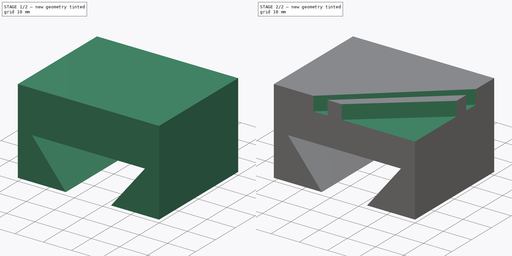
[diagram: build sequence overview — one tinted view per stage of 2, left to right]
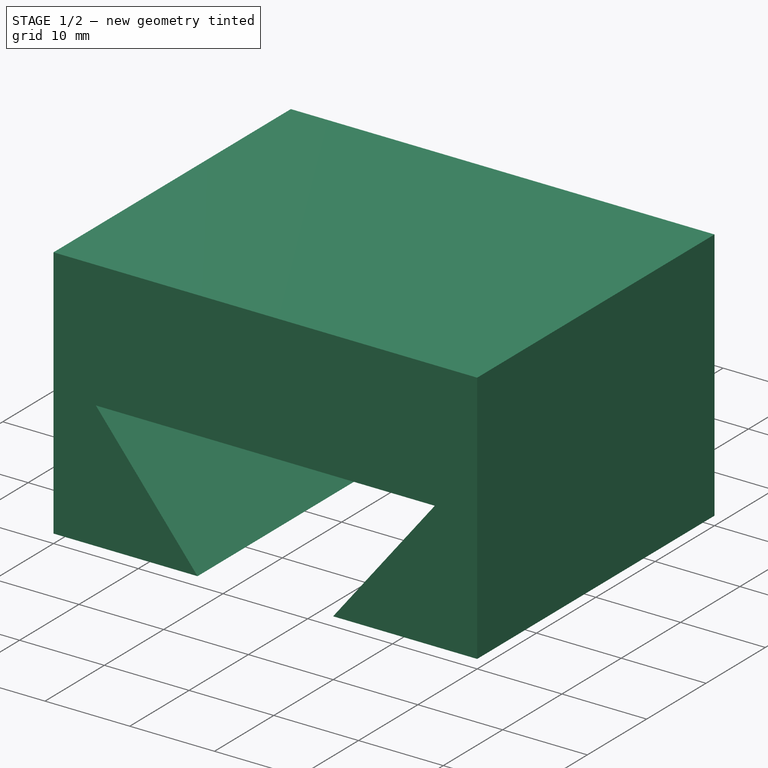
[diagram: stage 1 of 2 — iso view after this stage's code; geometry added in this stage tinted green]
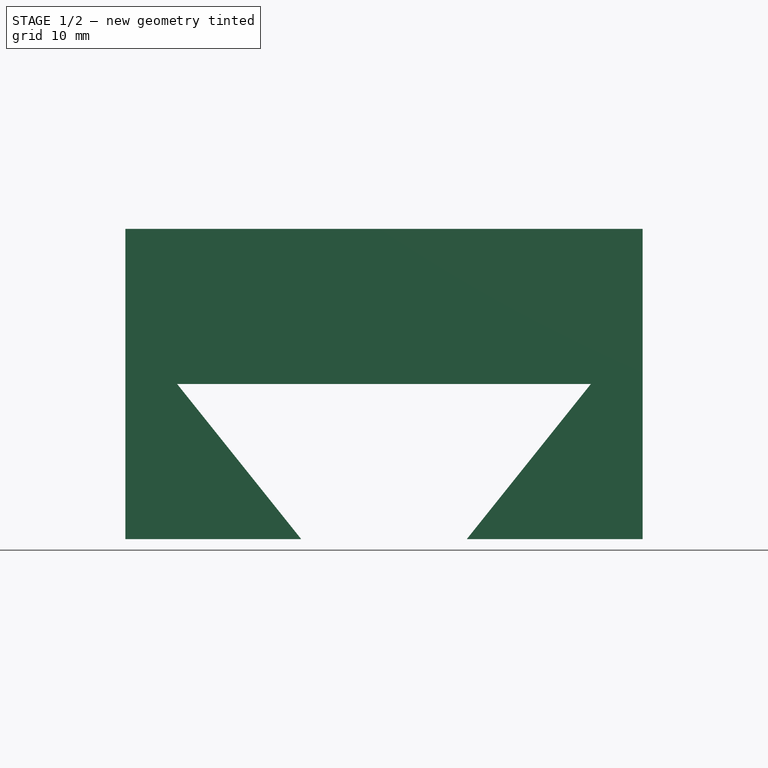
[diagram: stage 1 of 2 — front view after this stage's code; geometry added in this stage tinted green]
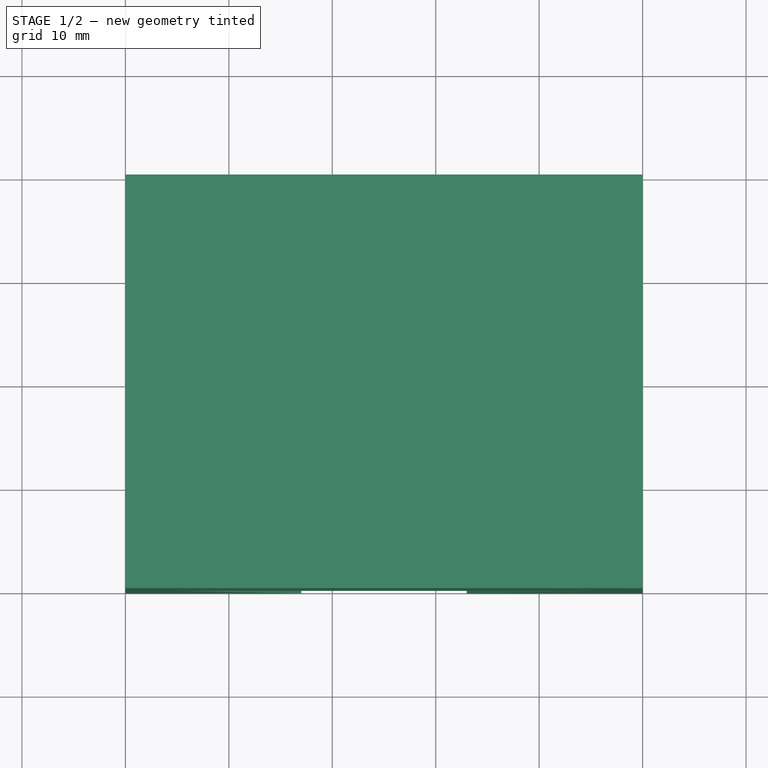
[diagram: stage 1 of 2 — top view after this stage's code; geometry added in this stage tinted green]
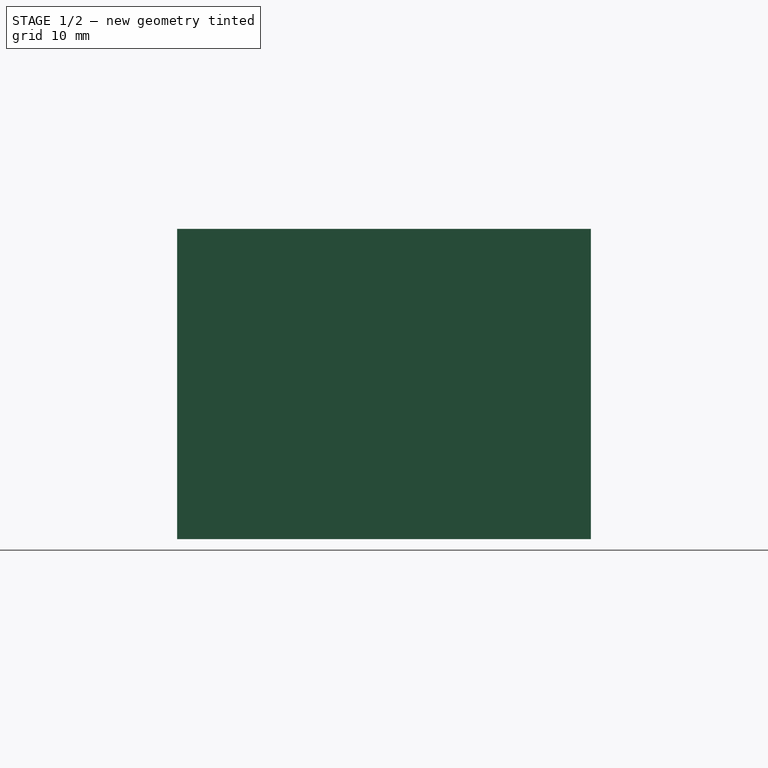
[diagram: stage 1 of 2 — right view after this stage's code; geometry added in this stage tinted green]
FCSTD DOCUMENT  (FreeCAD 0.14R3702 (Git))
Label: bloque1
License: CC-BY 3.0
LicenseURL: http://creativecommons.org/licenses/by/3.0/
objects: Sketcher::SketchObject×4, PartDesign::Pocket×3, Part::Box×1
note: 11 computed .brp shape members not serialized (recipe doc carries the construction recipe); baked Part::Feature solids carry a one-line shape summary decoded from their .brp

FEATURE [Part::Box] Box  label="Cubo"
  Height = 30
  Length = 50
  Width = 40
FEATURE [Sketcher::SketchObject] Sketch
  ExternalGeometry = -> [Box]
  Placement = pos=(0,0,0) rot=(1,0,0;1.5708rad)
  Support = -> Box [Face3]
  sketch-geometry (6):
    g0: LineSegment [constr] StartX=25 StartY=51.1878 StartZ=0 EndX=25 EndY=-10.4928 EndZ=0
    g1: LineSegment [constr] StartX=-15.7733 StartY=15 StartZ=0 EndX=60.4943 EndY=15 EndZ=0
    g2: LineSegment StartX=17 StartY=0 StartZ=0 EndX=5 EndY=15 EndZ=0
    g3: LineSegment StartX=5 StartY=15 StartZ=0 EndX=45 EndY=15 EndZ=0
    g4: LineSegment StartX=45 StartY=15 StartZ=0 EndX=33 EndY=0 EndZ=0
    g5: LineSegment StartX=33 StartY=0 StartZ=0 EndX=17 EndY=0 EndZ=0
  constraints (15):
    c: Symmetric(g-4,g-3,g0)
    c: Horizontal(g1)
    c: Symmetric(g-4,g-4,g1)
    c: PointOnObject(g2,g1)
    c: Coincident(g2,g3)
    c: Horizontal(g3)
    c: Coincident(g3,g4)
    c: Coincident(g4,g5)
    c: Horizontal(g5)
    c: Coincident(g2,g5)
    c: Symmetric(g2,g3,g0)
    c: Symmetric(g4,g2,g0)
    c: PointOnObject(g2,g-1)
    c: DistanceX(g5) = -16
    c: DistanceX(g3,g2) = -40
FEATURE [PartDesign::Pocket] Pocket
  Length = 5
  Sketch = -> Sketch
  Type = 1
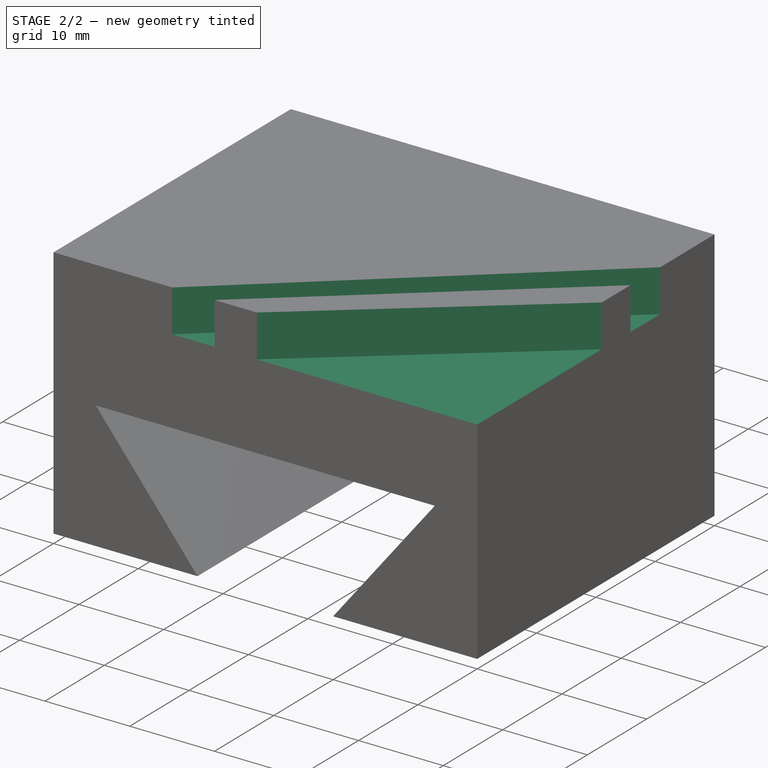
[diagram: stage 2 of 2 — iso view after this stage's code; geometry added in this stage tinted green]
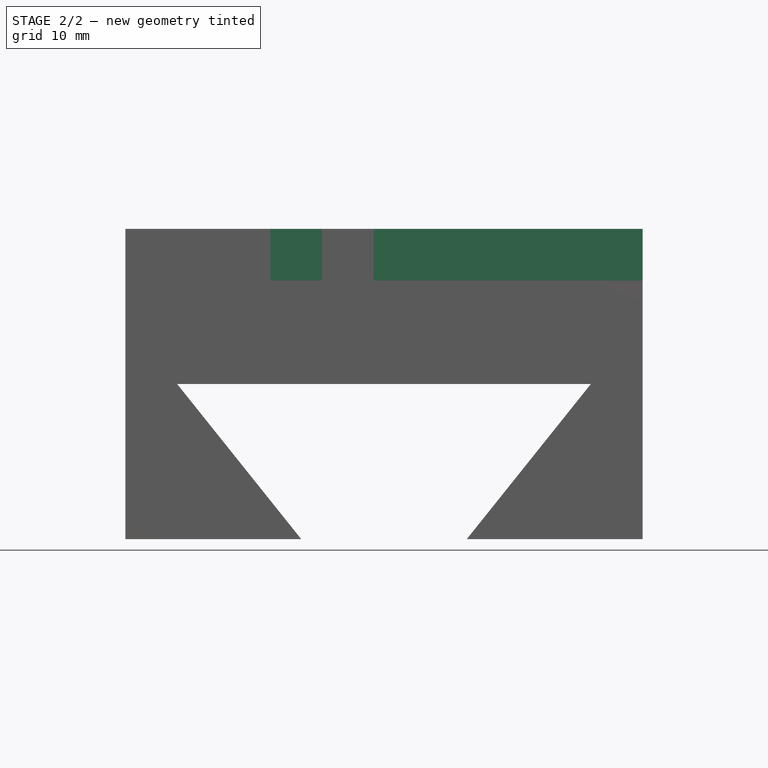
[diagram: stage 2 of 2 — front view after this stage's code; geometry added in this stage tinted green]
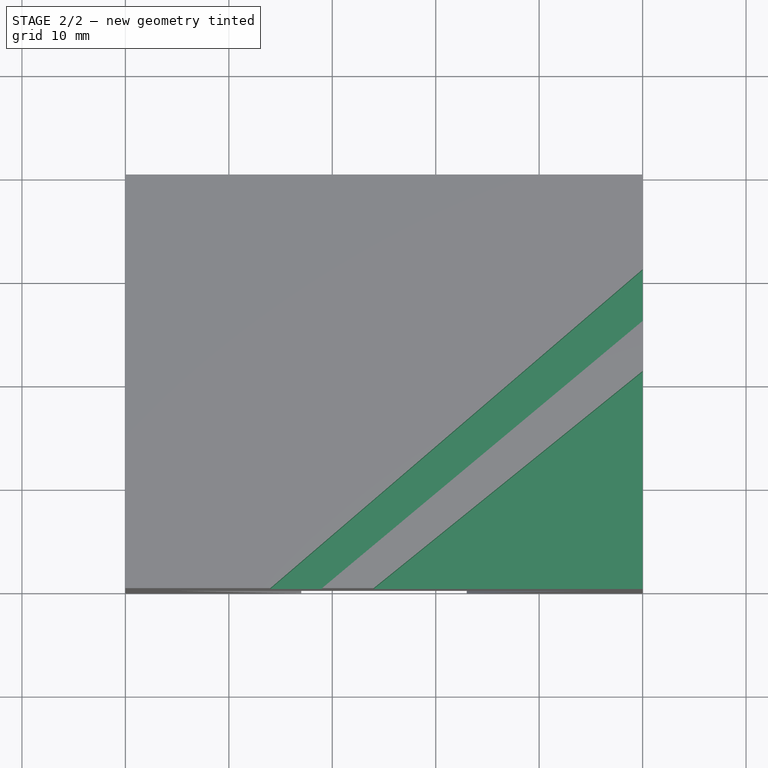
[diagram: stage 2 of 2 — top view after this stage's code; geometry added in this stage tinted green]
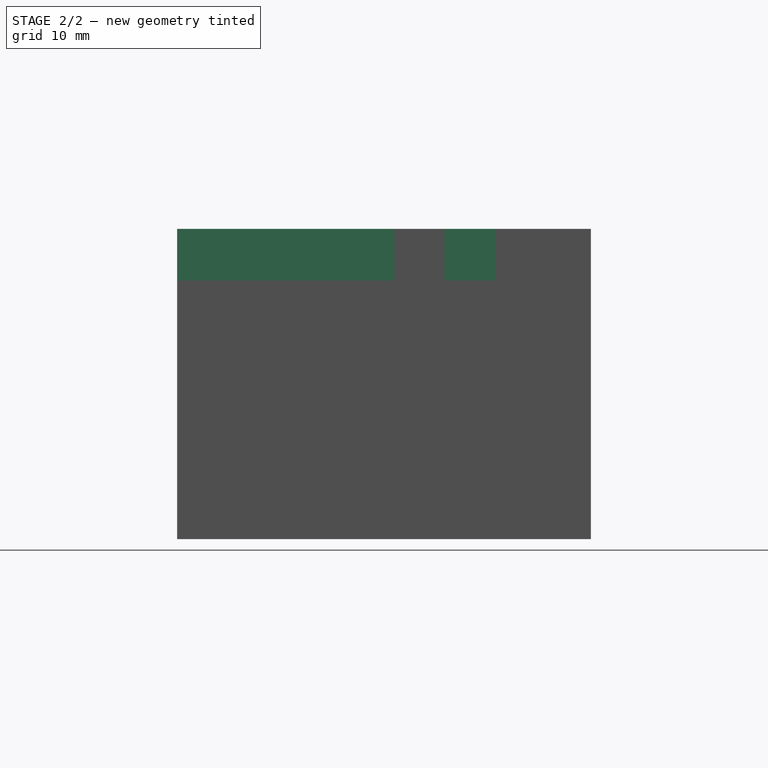
[diagram: stage 2 of 2 — right view after this stage's code; geometry added in this stage tinted green]
FEATURE [Sketcher::SketchObject] Sketch001
  ExternalGeometry = -> [Pocket]
  Placement = pos=(0,0,30) rot=(0,0,1;0rad)
  Support = -> Pocket [Face3]
  sketch-geometry (3):
    g0: LineSegment StartX=50 StartY=0 StartZ=0 EndX=24 EndY=0 EndZ=0
    g1: LineSegment StartX=24 StartY=0 StartZ=0 EndX=50 EndY=21 EndZ=0
    g2: LineSegment StartX=50 StartY=21 StartZ=0 EndX=50 EndY=0 EndZ=0
  constraints (9):
    c: PointOnObject(g0,g-1)
    c: Horizontal(g0)
    c: Coincident(g0,g1)
    c: PointOnObject(g1,g-3)
    c: Coincident(g1,g2)
    c: Vertical(g2)
    c: DistanceX(g0) = -26
    c: DistanceY(g2) = -21
    c: Coincident(g0,g2)
FEATURE [PartDesign::Pocket] Pocket001
  Length = 5
  Sketch = -> Sketch001
  Type = 0
FEATURE [Sketcher::SketchObject] Sketch002
  Placement = pos=(0,0,0) rot=(1,0,0;1.5708rad)
  Support = -> Pocket001 [Face2]
FEATURE [Sketcher::SketchObject] Sketch003
  ExternalGeometry = -> [Pocket001]
  Placement = pos=(0,0,30) rot=(0,0,1;0rad)
  Support = -> Pocket001 [Face3]
  sketch-geometry (4):
    g0: LineSegment StartX=19 StartY=-0.009107 StartZ=0 EndX=14 EndY=-0.009107 EndZ=0
    g1: LineSegment StartX=14 StartY=-0.009107 StartZ=0 EndX=50.1945 EndY=31 EndZ=0
    g2: LineSegment StartX=50.1945 StartY=31 StartZ=0 EndX=50.1945 EndY=26 EndZ=0
    g3: LineSegment StartX=50.1945 StartY=26 StartZ=0 EndX=19 EndY=-0.009107 EndZ=0
  constraints (10):
    c: Coincident(g0,g1)
    c: Coincident(g1,g2)
    c: Vertical(g2)
    c: Coincident(g2,g3)
    c: Coincident(g3,g0)
    c: Horizontal(g0)
    c: DistanceY(g-3,g2) = 5
    c: DistanceY(g2,g1) = 5
    c: DistanceX(g-4,g0) = -5
    c: DistanceX(g0,g0) = 5
FEATURE [PartDesign::Pocket] Pocket002
  Length = 5
  Sketch = -> Sketch003
  Type = 0
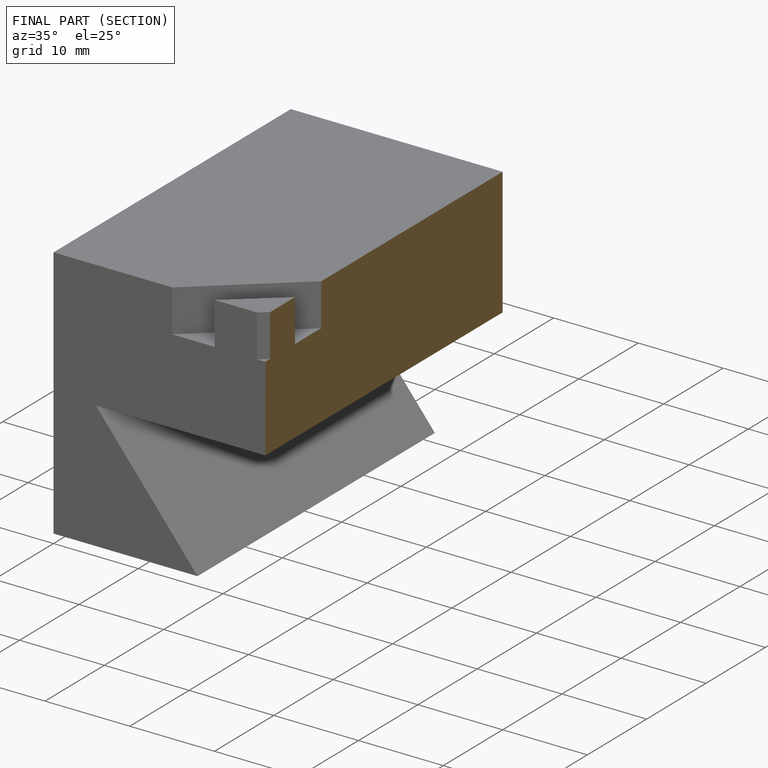
[diagram: finished part — half-section view (interior)]
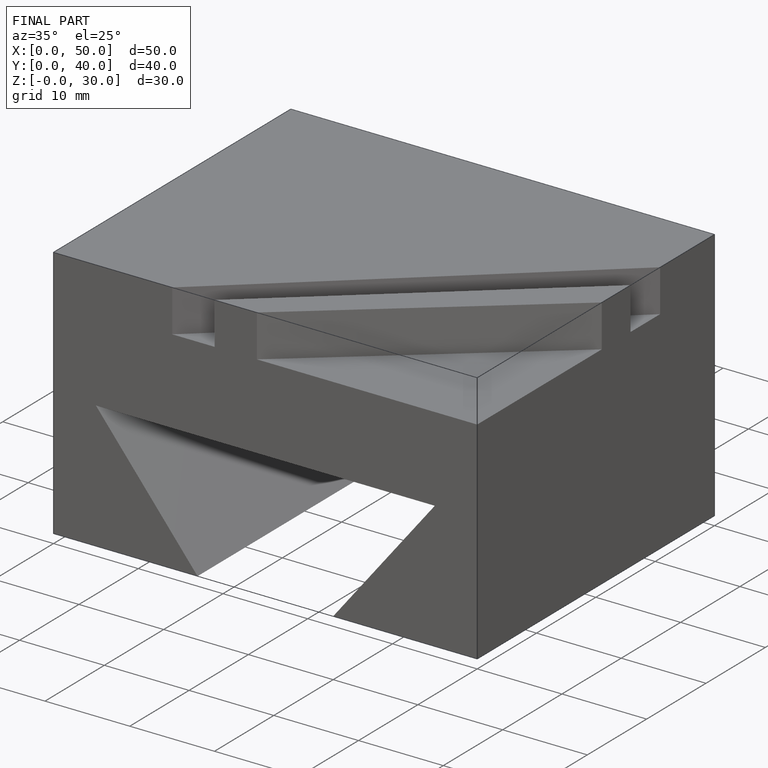
[diagram: finished part — iso view with bounding-box wireframe]
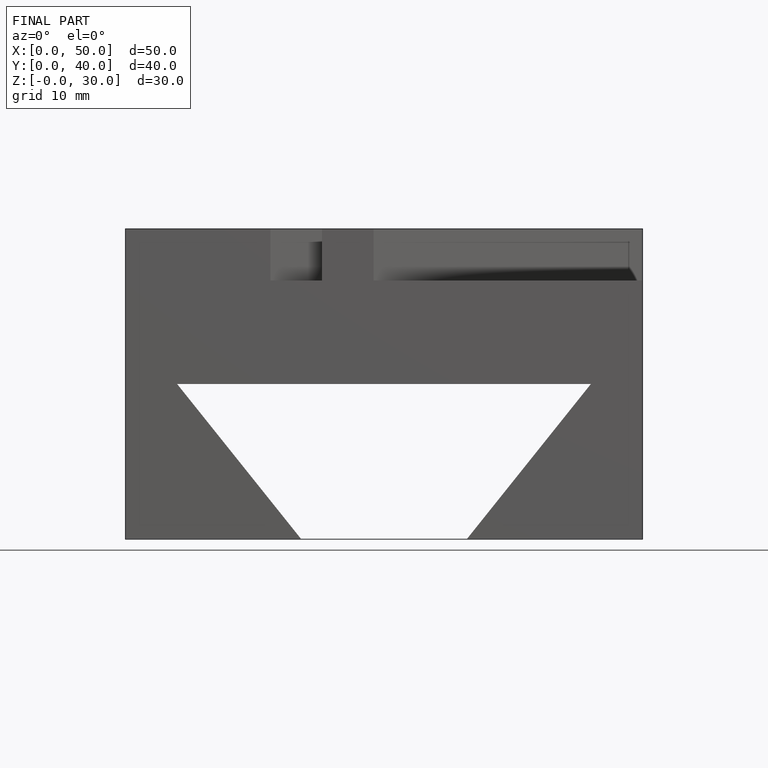
[diagram: finished part — front view with bounding-box wireframe]
